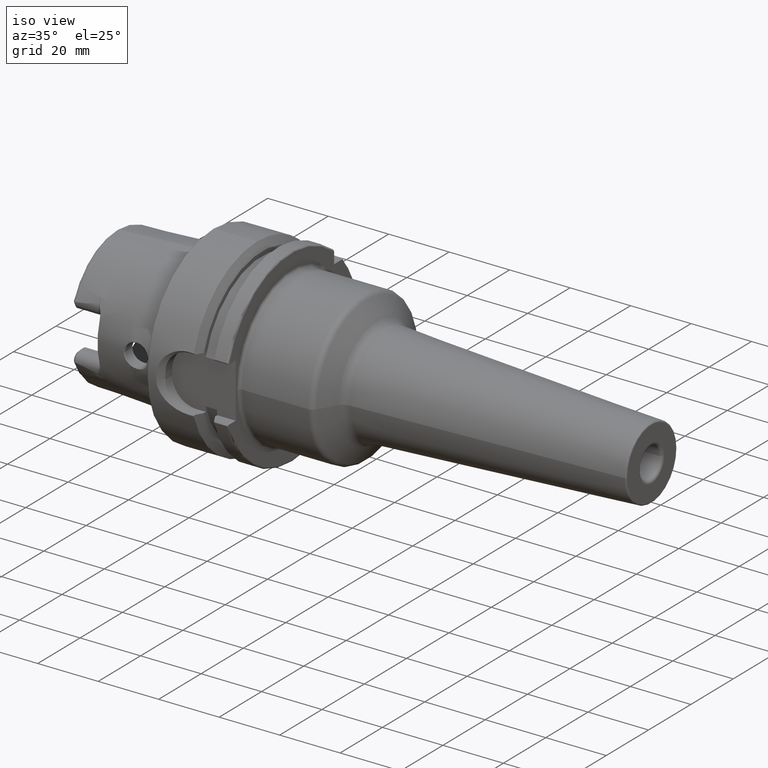
[diagram: clean part render]
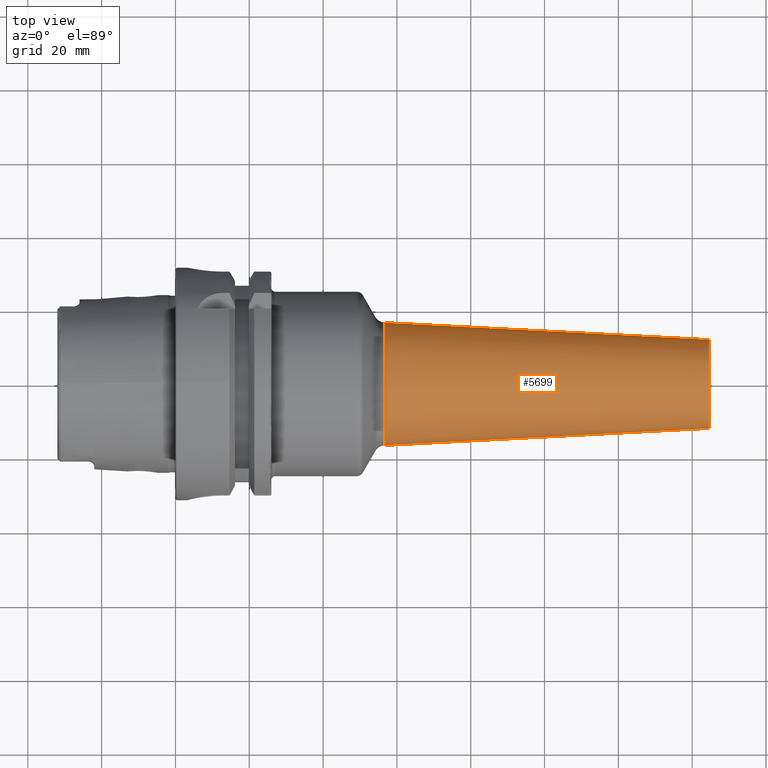
[diagram: tour spotlight — one face highlighted and labeled with its STEP entity id]
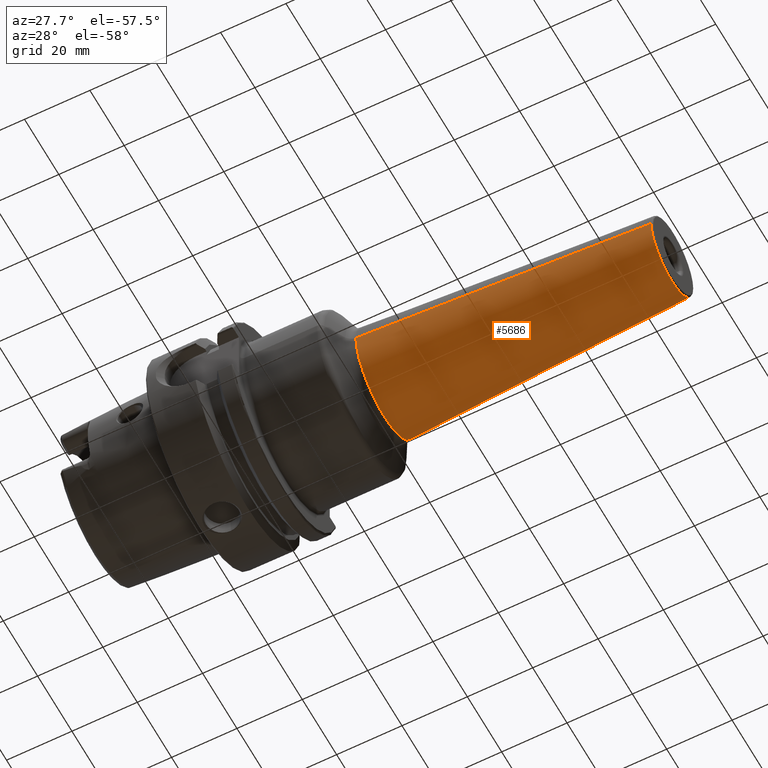
[diagram: tour spotlight — one face highlighted and labeled with its STEP entity id]
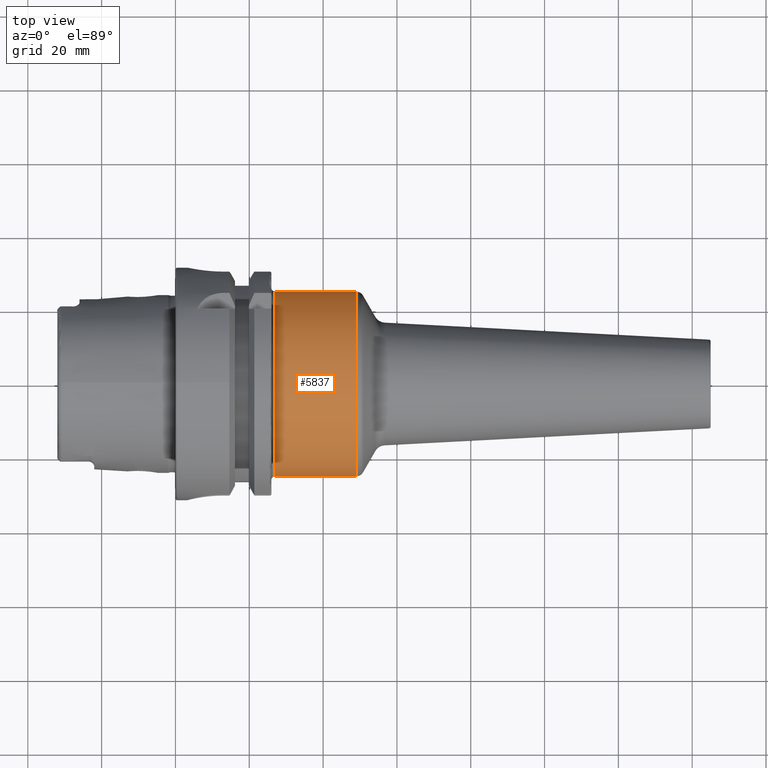
[diagram: tour spotlight — one face highlighted and labeled with its STEP entity id]
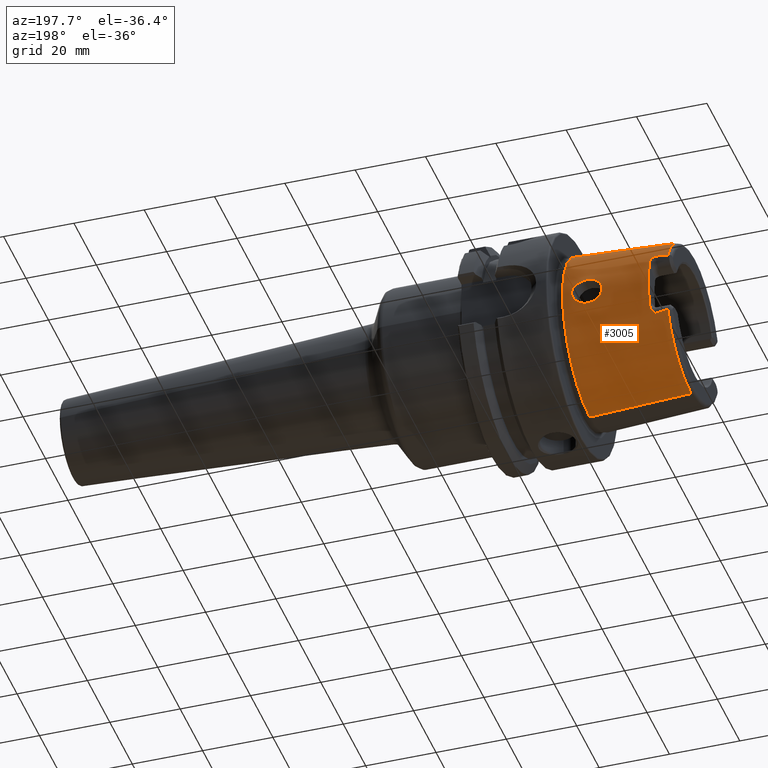
[diagram: tour spotlight — one face highlighted and labeled with its STEP entity id]
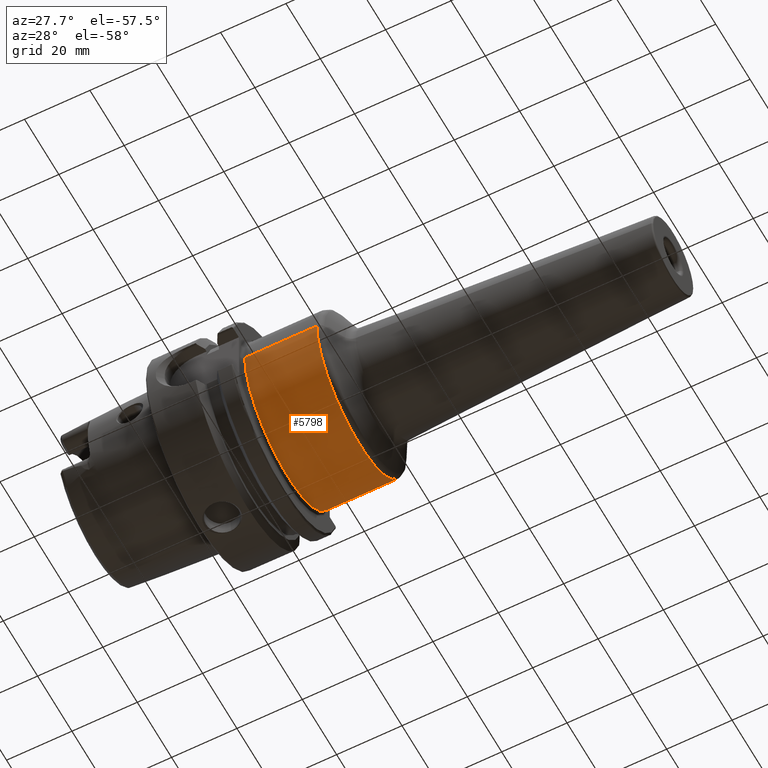
[diagram: tour spotlight — one face highlighted and labeled with its STEP entity id]
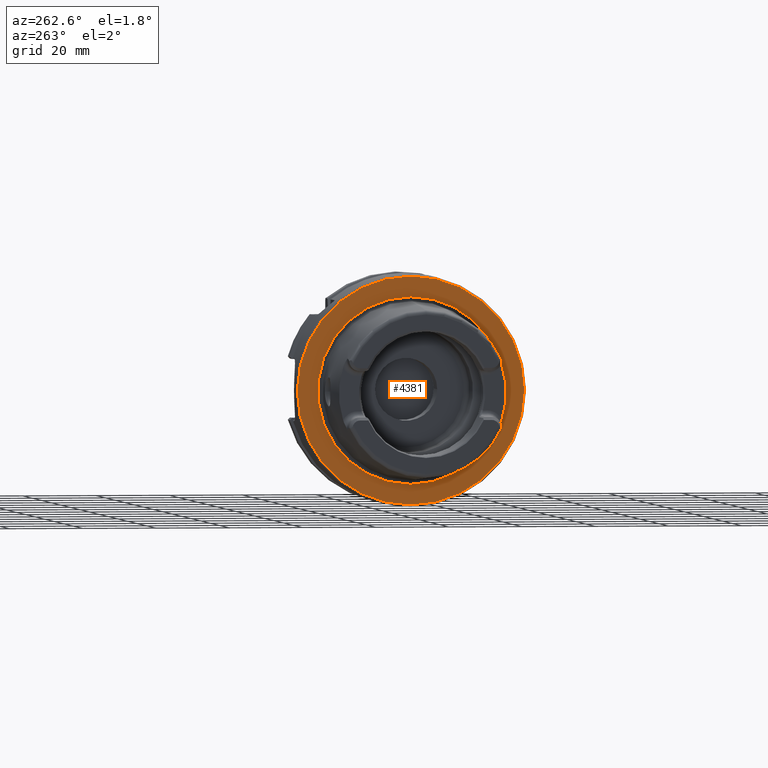
[diagram: tour spotlight — one face highlighted and labeled with its STEP entity id]
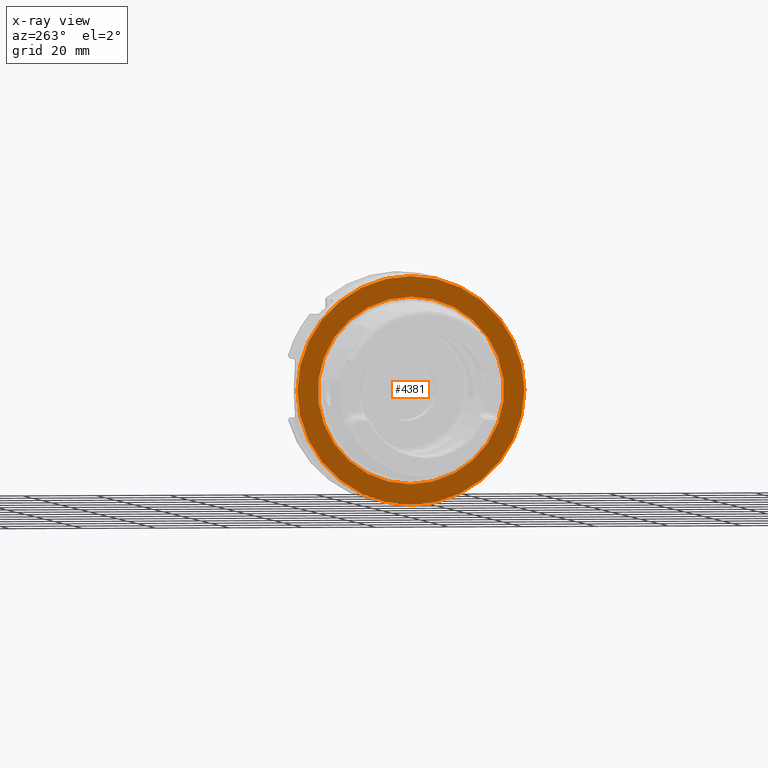
[diagram: x-ray of the same camera — body ghosted, this tour face saturated]
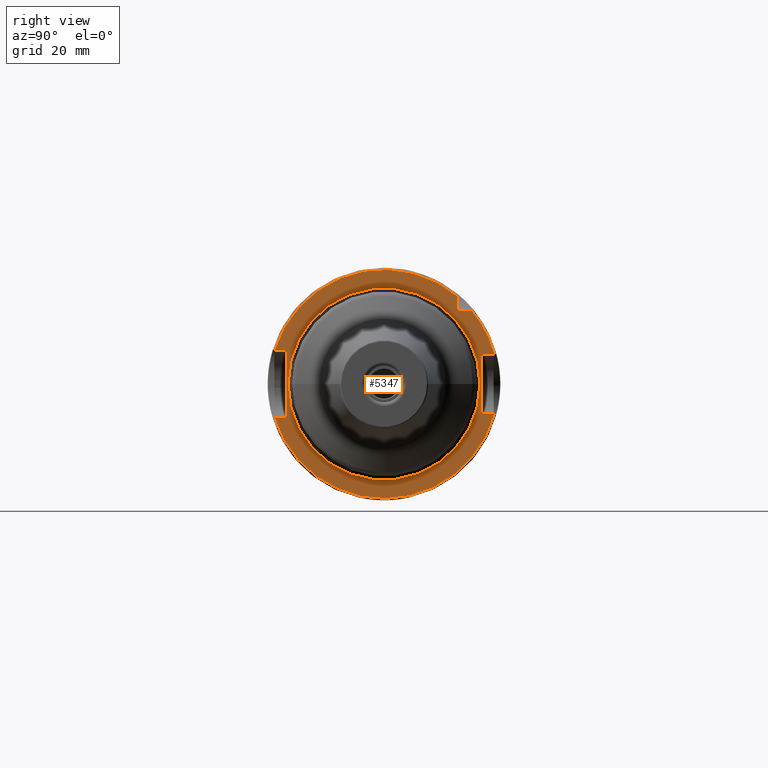
[diagram: tour spotlight — one face highlighted and labeled with its STEP entity id]
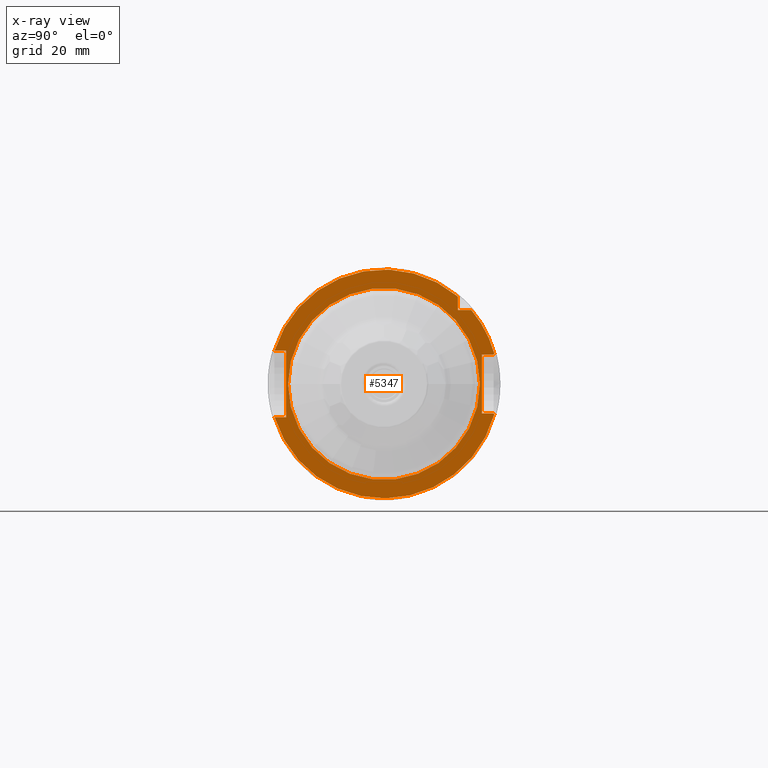
[diagram: x-ray of the same camera — body ghosted, this tour face saturated]
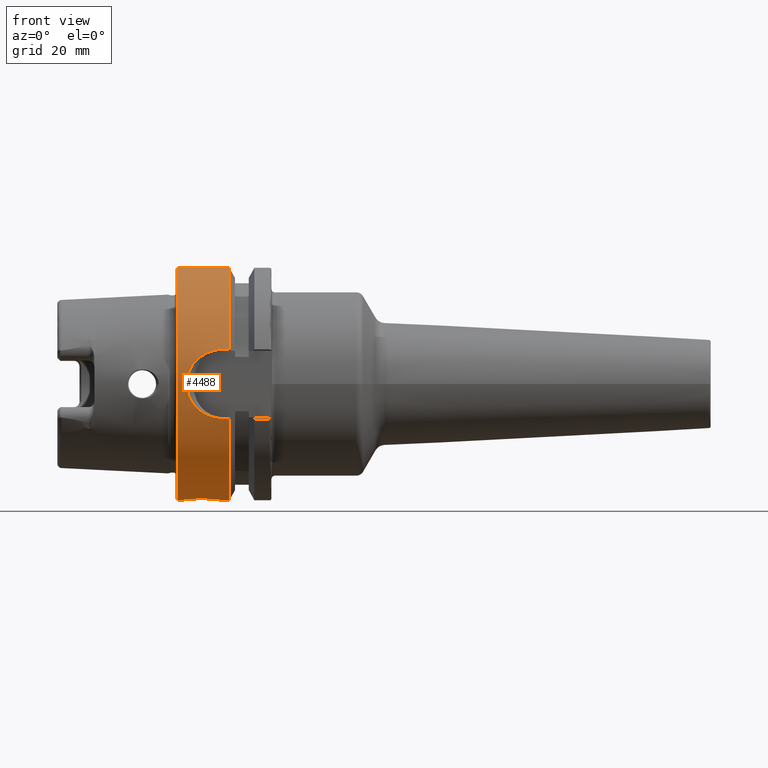
[diagram: tour spotlight — one face highlighted and labeled with its STEP entity id]
A machine part: a face-by-face anatomy tour. The part has 183 B-rep faces; the first image is the clean iso view, then the 8 largest visible faces are spotlighted one at a time (largest first), each with its STEP entity span.

Face 1 — top view, entity #5699. In plain terms, the highlighted conical surface has half-angle 3 deg.
Definition (entity closure, byte-faithful):
#2358=DIRECTION('',(-9.986295347546E-1,5.233595624293E-2,0.E0));
#2359=VECTOR('',#2358,8.802016175754E1);
#2360=CARTESIAN_POINT('',(1.445261679781E2,1.202483248402E1,0.E0));
#2361=LINE('',#2360,#2359);
#2362=DIRECTION('',(-9.986295347546E-1,-5.233595624293E-2,0.E0));
#2363=VECTOR('',#2362,8.802016175754E1);
#2364=CARTESIAN_POINT('',(1.445261679781E2,-1.202483248402E1,0.E0));
#2365=LINE('',#2364,#2363);
#2371=CARTESIAN_POINT('',(1.445261679781E2,0.E0,0.E0));
#2372=DIRECTION('',(1.E0,0.E0,0.E0));
#2373=DIRECTION('',(0.E0,1.E0,0.E0));
#2374=AXIS2_PLACEMENT_3D('',#2371,#2372,#2373);
#2376=CARTESIAN_POINT('',(5.662663479316E1,0.E0,0.E0));
#2377=DIRECTION('',(1.E0,0.E0,0.E0));
#2378=DIRECTION('',(0.E0,1.E0,0.E0));
#2379=AXIS2_PLACEMENT_3D('',#2376,#2377,#2378);
#2917=CARTESIAN_POINT('',(1.445261679781E2,1.202483248402E1,0.E0));
#2919=VERTEX_POINT('',#2917);
#2920=CARTESIAN_POINT('',(5.662663479316E1,1.663145181826E1,0.E0));
#2921=VERTEX_POINT('',#2920);
#2949=CARTESIAN_POINT('',(1.445261679781E2,-1.202483248402E1,0.E0));
#2951=VERTEX_POINT('',#2949);
#2952=CARTESIAN_POINT('',(5.662663479316E1,-1.663145181826E1,0.E0));
#2953=VERTEX_POINT('',#2952);
#5687=CARTESIAN_POINT('',(1.005764013856E2,0.E0,0.E0));
#5688=DIRECTION('',(-1.E0,0.E0,0.E0));
#5689=DIRECTION('',(0.E0,1.E0,0.E0));
#5690=AXIS2_PLACEMENT_3D('',#5687,#5688,#5689);
#5691=CONICAL_SURFACE('',#5690,1.432814215114E1,2.999999999999E0);
#5692=ORIENTED_EDGE('',*,*,#5677,.F.);
#5693=ORIENTED_EDGE('',*,*,#5654,.T.);
#5694=ORIENTED_EDGE('',*,*,#5681,.T.);
#5696=ORIENTED_EDGE('',*,*,#5695,.F.);
#5697=EDGE_LOOP('',(#5692,#5693,#5694,#5696));
#5698=FACE_OUTER_BOUND('',#5697,.F.);
#5699=ADVANCED_FACE('',(#5698),#5691,.T.);
#2375=CIRCLE('',#2374,1.202483248402E1);
#2380=CIRCLE('',#2379,1.663145181826E1);
#5654=EDGE_CURVE('',#2919,#2951,#2375,.T.);
#5677=EDGE_CURVE('',#2919,#2921,#2361,.T.);
#5681=EDGE_CURVE('',#2951,#2953,#2365,.T.);
#5695=EDGE_CURVE('',#2921,#2953,#2380,.T.);

Face 2 — auxiliary view, entity #5686. In plain terms, the highlighted conical surface has half-angle 3 deg.
Definition (entity closure, byte-faithful):
#2358=DIRECTION('',(-9.986295347546E-1,5.233595624293E-2,0.E0));
#2359=VECTOR('',#2358,8.802016175754E1);
#2360=CARTESIAN_POINT('',(1.445261679781E2,1.202483248402E1,0.E0));
#2361=LINE('',#2360,#2359);
#2362=DIRECTION('',(-9.986295347546E-1,-5.233595624293E-2,0.E0));
#2363=VECTOR('',#2362,8.802016175754E1);
#2364=CARTESIAN_POINT('',(1.445261679781E2,-1.202483248402E1,0.E0));
#2365=LINE('',#2364,#2363);
#2366=CARTESIAN_POINT('',(1.445261679781E2,0.E0,0.E0));
#2367=DIRECTION('',(-1.E0,0.E0,0.E0));
#2368=DIRECTION('',(0.E0,1.E0,0.E0));
#2369=AXIS2_PLACEMENT_3D('',#2366,#2367,#2368);
#2391=CARTESIAN_POINT('',(5.662663479316E1,0.E0,0.E0));
#2392=DIRECTION('',(-1.E0,0.E0,0.E0));
#2393=DIRECTION('',(0.E0,1.E0,0.E0));
#2394=AXIS2_PLACEMENT_3D('',#2391,#2392,#2393);
#2917=CARTESIAN_POINT('',(1.445261679781E2,1.202483248402E1,0.E0));
#2919=VERTEX_POINT('',#2917);
#2920=CARTESIAN_POINT('',(5.662663479316E1,1.663145181826E1,0.E0));
#2921=VERTEX_POINT('',#2920);
#2949=CARTESIAN_POINT('',(1.445261679781E2,-1.202483248402E1,0.E0));
#2951=VERTEX_POINT('',#2949);
#2952=CARTESIAN_POINT('',(5.662663479316E1,-1.663145181826E1,0.E0));
#2953=VERTEX_POINT('',#2952);
#5672=CARTESIAN_POINT('',(1.005764013856E2,0.E0,0.E0));
#5673=DIRECTION('',(-1.E0,0.E0,0.E0));
#5674=DIRECTION('',(0.E0,1.E0,0.E0));
#5675=AXIS2_PLACEMENT_3D('',#5672,#5673,#5674);
#5676=CONICAL_SURFACE('',#5675,1.432814215114E1,2.999999999999E0);
#5678=ORIENTED_EDGE('',*,*,#5677,.T.);
#5680=ORIENTED_EDGE('',*,*,#5679,.T.);
#5682=ORIENTED_EDGE('',*,*,#5681,.F.);
#5683=ORIENTED_EDGE('',*,*,#5665,.F.);
#5684=EDGE_LOOP('',(#5678,#5680,#5682,#5683));
#5685=FACE_OUTER_BOUND('',#5684,.F.);
#5686=ADVANCED_FACE('',(#5685),#5676,.T.);
#2370=CIRCLE('',#2369,1.202483248402E1);
#2395=CIRCLE('',#2394,1.663145181826E1);
#5665=EDGE_CURVE('',#2919,#2951,#2370,.T.);
#5677=EDGE_CURVE('',#2919,#2921,#2361,.T.);
#5679=EDGE_CURVE('',#2921,#2953,#2395,.T.);
#5681=EDGE_CURVE('',#2951,#2953,#2365,.T.);

Face 3 — top view, entity #5837. In plain terms, the highlighted cylindrical surface (partial cylindrical patch) has radius 25 mm, axis along (1, 0, 0).
Definition (entity closure, byte-faithful):
#2439=DIRECTION('',(-1.E0,0.E0,-7.152713896745E-13));
#2440=VECTOR('',#2439,2.206293405506E1);
#2441=CARTESIAN_POINT('',(4.906293405506E1,-2.5E1,0.E0));
#2442=LINE('',#2441,#2440);
#2448=DIRECTION('',(-1.E0,0.E0,7.152379558315E-13));
#2449=VECTOR('',#2448,2.206293405506E1);
#2450=CARTESIAN_POINT('',(4.906293405506E1,2.5E1,0.E0));
#2451=LINE('',#2450,#2449);
#2462=CARTESIAN_POINT('',(2.7E1,0.E0,0.E0));
#2463=DIRECTION('',(1.E0,0.E0,0.E0));
#2464=DIRECTION('',(0.E0,1.E0,0.E0));
#2465=AXIS2_PLACEMENT_3D('',#2462,#2463,#2464);
#2467=CARTESIAN_POINT('',(4.906293405506E1,0.E0,0.E0));
#2468=DIRECTION('',(1.E0,0.E0,0.E0));
#2469=DIRECTION('',(0.E0,1.E0,0.E0));
#2470=AXIS2_PLACEMENT_3D('',#2467,#2468,#2469);
#2926=CARTESIAN_POINT('',(4.906293405506E1,2.5E1,0.E0));
#2927=VERTEX_POINT('',#2926);
#2958=CARTESIAN_POINT('',(4.906293405506E1,-2.5E1,0.E0));
#2959=VERTEX_POINT('',#2958);
#2968=CARTESIAN_POINT('',(2.7E1,-2.5E1,0.E0));
#2969=CARTESIAN_POINT('',(2.7E1,2.5E1,0.E0));
#2970=VERTEX_POINT('',#2968);
#2971=VERTEX_POINT('',#2969);
#5826=CARTESIAN_POINT('',(2.005E1,0.E0,0.E0));
#5827=DIRECTION('',(1.E0,0.E0,0.E0));
#5828=DIRECTION('',(0.E0,-1.E0,0.E0));
#5829=AXIS2_PLACEMENT_3D('',#5826,#5827,#5828);
#5830=CYLINDRICAL_SURFACE('',#5829,2.5E1);
#5831=ORIENTED_EDGE('',*,*,#5820,.F.);
#5832=ORIENTED_EDGE('',*,*,#5794,.F.);
#5833=ORIENTED_EDGE('',*,*,#5766,.T.);
#5834=ORIENTED_EDGE('',*,*,#5791,.T.);
#5835=EDGE_LOOP('',(#5831,#5832,#5833,#5834));
#5836=FACE_OUTER_BOUND('',#5835,.F.);
#5837=ADVANCED_FACE('',(#5836),#5830,.T.);
#2466=CIRCLE('',#2465,2.5E1);
#2471=CIRCLE('',#2470,2.5E1);
#5766=EDGE_CURVE('',#2927,#2959,#2471,.T.);
#5791=EDGE_CURVE('',#2959,#2970,#2442,.T.);
#5794=EDGE_CURVE('',#2927,#2971,#2451,.T.);
#5820=EDGE_CURVE('',#2971,#2970,#2466,.T.);

Face 4 — auxiliary view, entity #3005. In plain terms, the highlighted conical surface has half-angle 2.868 deg.
Definition (entity closure, byte-faithful):
#2=CARTESIAN_POINT('',(-3.086004333271E1,0.E0,0.E0));
#3=DIRECTION('',(-1.E0,0.E0,0.E0));
#4=DIRECTION('',(0.E0,9.163649919573E-1,-4.003438540993E-1));
#5=AXIS2_PLACEMENT_3D('',#2,#3,#4);
#7=CARTESIAN_POINT('',(-2.000078966146E0,0.E0,0.E0));
#8=DIRECTION('',(-1.E0,0.E0,0.E0));
#9=DIRECTION('',(0.E0,0.E0,1.E0));
#10=AXIS2_PLACEMENT_3D('',#7,#8,#9);
#12=CARTESIAN_POINT('',(-3.086004333271E1,0.E0,0.E0));
#13=DIRECTION('',(-1.E0,0.E0,0.E0));
#14=DIRECTION('',(0.E0,0.E0,1.E0));
#15=AXIS2_PLACEMENT_3D('',#12,#13,#14);
#17=CARTESIAN_POINT('',(-3.086004333271E1,2.086981840766E1,9.117659021249E0));
#18=CARTESIAN_POINT('',(-3.053477016229E1,2.087026407252E1,9.157343468693E0));
#19=CARTESIAN_POINT('',(-2.990731725920E1,2.086951854295E1,9.237138009720E0));
#20=CARTESIAN_POINT('',(-2.903749175968E1,2.086333964170E1,9.358087934639E0));
#21=CARTESIAN_POINT('',(-2.823306039663E1,2.085177035668E1,9.481640423811E0));
#22=CARTESIAN_POINT('',(-2.773735868303E1,2.083999307163E1,9.567019157167E0));
#23=CARTESIAN_POINT('',(-2.75E1,2.083289994314E1,9.610781850025E0));
#25=CARTESIAN_POINT('',(-3.086004333271E1,2.086981840766E1,-9.117659021249E0));
#26=CARTESIAN_POINT('',(-3.053477016229E1,2.087026407252E1,-9.157343468693E0));
#27=CARTESIAN_POINT('',(-2.990731725920E1,2.086951854295E1,-9.237138009720E0));
#28=CARTESIAN_POINT('',(-2.903749175968E1,2.086333964170E1,-9.358087934639E0));
#29=CARTESIAN_POINT('',(-2.823306039663E1,2.085177035668E1,-9.481640423811E0));
#30=CARTESIAN_POINT('',(-2.773735868303E1,2.083999307163E1,-9.567019157167E0));
#31=CARTESIAN_POINT('',(-2.75E1,2.083289994314E1,-9.610781850025E0));
#33=CARTESIAN_POINT('',(-1.304439190524E1,2.366711362744E1,0.E0));
#34=CARTESIAN_POINT('',(-1.304439190524E1,2.366711362744E1,-2.692296203512E-1));
#35=CARTESIAN_POINT('',(-1.298596588633E1,2.366095548437E1,-7.915478808268E-1));
#36=CARTESIAN_POINT('',(-1.273593529021E1,2.363615494345E1,-1.538491121410E0));
#37=CARTESIAN_POINT('',(-1.234085581199E1,2.360161826823E1,-2.213541098239E0));
#38=CARTESIAN_POINT('',(-1.181419542757E1,2.356442533815E1,-2.805250832800E0));
#39=CARTESIAN_POINT('',(-1.117137997799E1,2.353291472613E1,-3.293080560877E0));
#40=CARTESIAN_POINT('',(-1.044411763446E1,2.351584278645E1,-3.653416998785E0));
#41=CARTESIAN_POINT('',(-9.665961713705E0,2.351947741575E1,-3.874611692795E0));
#42=CARTESIAN_POINT('',(-8.868249773196E0,2.354653765362E1,-3.954597009881E0));
#43=CARTESIAN_POINT('',(-8.066538054402E0,2.359739017255E1,-3.894486132971E0));
#44=CARTESIAN_POINT('',(-7.282895667530E0,2.366966238930E1,-3.694792672991E0));
#45=CARTESIAN_POINT('',(-6.526798753436E0,2.376050761714E1,-3.345491144455E0));
#46=CARTESIAN_POINT('',(-5.863814319433E0,2.385701628222E1,-2.868853306938E0));
#47=CARTESIAN_POINT('',(-5.312865344565E0,2.394874241525E1,-2.282242940895E0));
#48=CARTESIAN_POINT('',(-4.894562356430E0,2.402528280422E1,-1.608353345469E0));
#49=CARTESIAN_POINT('',(-4.618382192889E0,2.407904412959E1,-8.401112834544E-1));
#50=CARTESIAN_POINT('',(-4.550876813471E0,2.409262908457E1,-2.877835390342E-1));
#51=CARTESIAN_POINT('',(-4.550876813471E0,2.409262908457E1,0.E0));
#53=CARTESIAN_POINT('',(-4.550876813471E0,2.409262908457E1,0.E0));
#54=CARTESIAN_POINT('',(-4.550876813471E0,2.409262908457E1,2.859611557422E-1));
#55=CARTESIAN_POINT('',(-4.617596309412E0,2.407920413971E1,8.352613928778E-1));
#56=CARTESIAN_POINT('',(-4.890694973026E0,2.402602347294E1,1.599880277375E0));
#57=CARTESIAN_POINT('',(-5.306466792903E0,2.394987071124E1,2.273906799261E0));
#58=CARTESIAN_POINT('',(-5.856510230644E0,2.385815053501E1,2.862665496108E0));
#59=CARTESIAN_POINT('',(-6.521241332787E0,2.376122989035E1,3.342466827978E0));
#60=CARTESIAN_POINT('',(-7.278646414857E0,2.367010677752E1,3.693348295885E0));
#61=CARTESIAN_POINT('',(-8.062694821519E0,2.359768581097E1,3.893886174943E0));
#62=CARTESIAN_POINT('',(-8.864889034770E0,2.354669857096E1,3.954654604967E0));
#63=CARTESIAN_POINT('',(-9.662752662742E0,2.351953711749E1,3.875232791745E0));
#64=CARTESIAN_POINT('',(-1.044126794827E1,2.351581579089E1,3.654504198045E0));
#65=CARTESIAN_POINT('',(-1.116829063931E1,2.353280579750E1,3.294940241881E0));
#66=CARTESIAN_POINT('',(-1.181105545196E1,2.356423840462E1,2.808070161338E0));
#67=CARTESIAN_POINT('',(-1.233792159236E1,2.360138355943E1,2.217544614980E0));
#68=CARTESIAN_POINT('',(-1.273424784845E1,2.363599247778E1,1.542402709130E0));
#69=CARTESIAN_POINT('',(-1.298554429292E1,2.366091077517E1,7.941137450600E-1));
#70=CARTESIAN_POINT('',(-1.304439190524E1,2.366711362744E1,2.702086010916E-1));
#71=CARTESIAN_POINT('',(-1.304439190524E1,2.366711362744E1,0.E0));
#144=CARTESIAN_POINT('',(-2.75E1,2.083289994314E1,-9.610781850025E0));
#145=CARTESIAN_POINT('',(-2.743975062531E1,2.083109947580E1,-9.621890248698E0));
#146=CARTESIAN_POINT('',(-2.731974848713E1,2.083872619074E1,-9.619737940193E0));
#147=CARTESIAN_POINT('',(-2.713788283439E1,2.088499706769E1,-9.541042090458E0));
#148=CARTESIAN_POINT('',(-2.696734572208E1,2.095414112914E1,-9.409321527965E0));
#149=CARTESIAN_POINT('',(-2.680749153758E1,2.103583876480E1,-9.245355378728E0));
#150=CARTESIAN_POINT('',(-2.665257735252E1,2.112843537783E1,-9.051716021862E0));
#151=CARTESIAN_POINT('',(-2.650302698832E1,2.123047210424E1,-8.829512386182E0));
#152=CARTESIAN_POINT('',(-2.636248241751E1,2.133984318010E1,-8.581008391494E0));
#153=CARTESIAN_POINT('',(-2.623108108915E1,2.145913591165E1,-8.296954135832E0));
#154=CARTESIAN_POINT('',(-2.611489180659E1,2.158976731555E1,-7.968405102356E0));
#155=CARTESIAN_POINT('',(-2.602652288189E1,2.173158022596E1,-7.587530024420E0));
#156=CARTESIAN_POINT('',(-2.6E1,2.183164499938E1,-7.296342131266E0));
#157=CARTESIAN_POINT('',(-2.6E1,2.188224159781E1,-7.141305064401E0));
#173=CARTESIAN_POINT('',(-2.6E1,0.E0,0.E0));
#174=DIRECTION('',(1.E0,0.E0,0.E0));
#175=DIRECTION('',(0.E0,9.506556522061E-1,-3.102480151887E-1));
#176=AXIS2_PLACEMENT_3D('',#173,#174,#175);
#713=DIRECTION('',(-9.987474310439E-1,-1.043943059125E-10,-5.003567710383E-2));
#714=VECTOR('',#713,2.889623723507E1);
#715=CARTESIAN_POINT('',(-2.000000627352E0,3.013169918385E-9,2.422041252602E1));
#716=LINE('',#715,#714);
#722=DIRECTION('',(-9.987474310439E-1,1.043954859780E-10,5.003567710383E-2));
#723=VECTOR('',#722,2.889623723507E1);
#724=CARTESIAN_POINT('',(-2.000000627352E0,-3.013171862045E-9,
-2.422041252602E1));
#725=LINE('',#724,#723);
#881=CARTESIAN_POINT('',(-2.6E1,2.188224159781E1,7.141305064400E0));
#882=CARTESIAN_POINT('',(-2.6E1,2.183974716074E1,7.271515653360E0));
#883=CARTESIAN_POINT('',(-2.601871282871E1,2.175468164903E1,7.521324142367E0));
#884=CARTESIAN_POINT('',(-2.608831272694E1,2.162788937119E1,7.867819964950E0));
#885=CARTESIAN_POINT('',(-2.618560132166E1,2.150728532315E1,8.177555427085E0));
#886=CARTESIAN_POINT('',(-2.630091098865E1,2.139363544444E1,8.454351951900E0));
#887=CARTESIAN_POINT('',(-2.642777532615E1,2.128749113051E1,8.701079139516E0));
#888=CARTESIAN_POINT('',(-2.656205230822E1,2.118893349758E1,8.920855574258E0));
#889=CARTESIAN_POINT('',(-2.670233126283E1,2.109762227452E1,9.116811046229E0));
#890=CARTESIAN_POINT('',(-2.684756686438E1,2.101419232942E1,9.289367907590E0));
#891=CARTESIAN_POINT('',(-2.700261207520E1,2.093857757737E1,9.439508455813E0));
#892=CARTESIAN_POINT('',(-2.716024259459E1,2.087834082786E1,9.552833408787E0));
#893=CARTESIAN_POINT('',(-2.733041362146E1,2.083774391445E1,9.620584457154E0));
#894=CARTESIAN_POINT('',(-2.744319606554E1,2.083120243791E1,9.621255000217E0));
#895=CARTESIAN_POINT('',(-2.75E1,2.083289994314E1,9.610781850025E0));
#2547=CARTESIAN_POINT('',(-2.000078966146E0,0.E0,-2.422042115892E1));
#2548=CARTESIAN_POINT('',(-2.000078966146E0,0.E0,2.422042115892E1));
#2549=VERTEX_POINT('',#2547);
#2550=VERTEX_POINT('',#2548);
#2692=CARTESIAN_POINT('',(-2.6E1,2.188224159781E1,-7.141305064400E0));
#2694=VERTEX_POINT('',#2692);
#2696=CARTESIAN_POINT('',(-2.75E1,2.083289994314E1,-9.610781850025E0));
#2698=VERTEX_POINT('',#2696);
#2700=CARTESIAN_POINT('',(-2.75E1,2.083289994314E1,9.610781850025E0));
#2702=VERTEX_POINT('',#2700);
#2704=CARTESIAN_POINT('',(-2.6E1,2.188224159781E1,7.141305064400E0));
#2706=VERTEX_POINT('',#2704);
#2722=CARTESIAN_POINT('',(-3.086004333271E1,0.E0,-2.277456973022E1));
#2724=VERTEX_POINT('',#2722);
#2726=CARTESIAN_POINT('',(-3.086004333271E1,2.086981840766E1,
-9.117659021249E0));
#2727=VERTEX_POINT('',#2726);
#2728=CARTESIAN_POINT('',(-3.086004333271E1,0.E0,2.277456973022E1));
#2729=CARTESIAN_POINT('',(-3.086004333271E1,2.086981840766E1,9.117659021249E0));
#2730=VERTEX_POINT('',#2728);
#2731=VERTEX_POINT('',#2729);
#2810=VERTEX_POINT('',#33);
#2811=VERTEX_POINT('',#51);
#2972=CARTESIAN_POINT('',(-1.643002229390E1,0.E0,0.E0));
#2973=DIRECTION('',(1.E0,0.E0,0.E0));
#2974=DIRECTION('',(0.E0,0.E0,1.E0));
#2975=AXIS2_PLACEMENT_3D('',#2972,#2973,#2974);
#2976=CONICAL_SURFACE('',#2975,2.349749739118E1,2.86805556E0);
#2978=ORIENTED_EDGE('',*,*,#2977,.T.);
#2980=ORIENTED_EDGE('',*,*,#2979,.F.);
#2982=ORIENTED_EDGE('',*,*,#2981,.F.);
#2984=ORIENTED_EDGE('',*,*,#2983,.T.);
#2986=ORIENTED_EDGE('',*,*,#2985,.T.);
#2988=ORIENTED_EDGE('',*,*,#2987,.T.);
#2990=ORIENTED_EDGE('',*,*,#2989,.F.);
#2992=ORIENTED_EDGE('',*,*,#2991,.F.);
#2994=ORIENTED_EDGE('',*,*,#2993,.F.);
#2996=ORIENTED_EDGE('',*,*,#2995,.F.);
#2997=EDGE_LOOP('',(#2978,#2980,#2982,#2984,#2986,#2988,#2990,#2992,#2994,
#2996));
#2998=FACE_OUTER_BOUND('',#2997,.F.);
#3000=ORIENTED_EDGE('',*,*,#2999,.F.);
#3002=ORIENTED_EDGE('',*,*,#3001,.F.);
#3003=EDGE_LOOP('',(#3000,#3002));
#3004=FACE_BOUND('',#3003,.F.);
#3005=ADVANCED_FACE('',(#2998,#3004),#2976,.T.);
#6=CIRCLE('',#5,2.277456973022E1);
#11=CIRCLE('',#10,2.422042115892E1);
#16=CIRCLE('',#15,2.277456973022E1);
#24=B_SPLINE_CURVE_WITH_KNOTS('',3,(#17,#18,#19,#20,#21,#22,#23),.UNSPECIFIED.,
.F.,.F.,(4,1,1,1,4),(0.E0,2.5E-1,5.E-1,7.5E-1,1.E0),.UNSPECIFIED.);
#32=B_SPLINE_CURVE_WITH_KNOTS('',3,(#25,#26,#27,#28,#29,#30,#31),.UNSPECIFIED.,
.F.,.F.,(4,1,1,1,4),(0.E0,2.5E-1,5.E-1,7.5E-1,1.E0),.UNSPECIFIED.);
#52=B_SPLINE_CURVE_WITH_KNOTS('',3,(#33,#34,#35,#36,#37,#38,#39,#40,#41,#42,#43,
#44,#45,#46,#47,#48,#49,#50,#51),.UNSPECIFIED.,.F.,.F.,(4,1,1,1,1,1,1,1,1,1,1,1,
1,1,1,1,4),(0.E0,6.25E-2,1.25E-1,1.875E-1,2.5E-1,3.125E-1,3.75E-1,4.375E-1,
5.E-1,5.625E-1,6.25E-1,6.875E-1,7.5E-1,8.125E-1,8.75E-1,9.375E-1,1.E0),
.UNSPECIFIED.);
#72=B_SPLINE_CURVE_WITH_KNOTS('',3,(#53,#54,#55,#56,#57,#58,#59,#60,#61,#62,#63,
#64,#65,#66,#67,#68,#69,#70,#71),.UNSPECIFIED.,.F.,.F.,(4,1,1,1,1,1,1,1,1,1,1,1,
1,1,1,1,4),(0.E0,6.25E-2,1.25E-1,1.875E-1,2.5E-1,3.125E-1,3.75E-1,4.375E-1,
5.E-1,5.625E-1,6.25E-1,6.875E-1,7.5E-1,8.125E-1,8.75E-1,9.375E-1,1.E0),
.UNSPECIFIED.);
#158=B_SPLINE_CURVE_WITH_KNOTS('',3,(#144,#145,#146,#147,#148,#149,#150,#151,
#152,#153,#154,#155,#156,#157),.UNSPECIFIED.,.F.,.F.,(4,1,1,1,1,1,1,1,1,1,1,4),(
0.E0,9.090909090909E-2,1.818181818182E-1,2.727272727273E-1,3.636363636364E-1,
4.545454545455E-1,5.454545454545E-1,6.363636363636E-1,7.272727272727E-1,
8.181818181818E-1,9.090909090909E-1,1.E0),.UNSPECIFIED.);
#177=CIRCLE('',#176,2.301805237998E1);
#896=B_SPLINE_CURVE_WITH_KNOTS('',3,(#881,#882,#883,#884,#885,#886,#887,#888,
#889,#890,#891,#892,#893,#894,#895),.UNSPECIFIED.,.F.,.F.,(4,1,1,1,1,1,1,1,1,1,
1,1,4),(0.E0,8.333333333333E-2,1.666666666667E-1,2.5E-1,3.333333333333E-1,
4.166666666667E-1,5.E-1,5.833333333333E-1,6.666666666667E-1,7.5E-1,
8.333333333333E-1,9.166666666667E-1,1.E0),.UNSPECIFIED.);
#2977=EDGE_CURVE('',#2727,#2724,#6,.T.);
#2979=EDGE_CURVE('',#2549,#2724,#725,.T.);
#2981=EDGE_CURVE('',#2550,#2549,#11,.T.);
#2983=EDGE_CURVE('',#2550,#2730,#716,.T.);
#2985=EDGE_CURVE('',#2730,#2731,#16,.T.);
#2987=EDGE_CURVE('',#2731,#2702,#24,.T.);
#2989=EDGE_CURVE('',#2706,#2702,#896,.T.);
#2991=EDGE_CURVE('',#2694,#2706,#177,.T.);
#2993=EDGE_CURVE('',#2698,#2694,#158,.T.);
#2995=EDGE_CURVE('',#2727,#2698,#32,.T.);
#2999=EDGE_CURVE('',#2810,#2811,#52,.T.);
#3001=EDGE_CURVE('',#2811,#2810,#72,.T.);

Face 5 — auxiliary view, entity #5798. In plain terms, the highlighted cylindrical surface (partial cylindrical patch) has radius 25 mm, axis along (1, 0, 0).
Definition (entity closure, byte-faithful):
#2434=CARTESIAN_POINT('',(2.7E1,0.E0,0.E0));
#2435=DIRECTION('',(1.E0,0.E0,0.E0));
#2436=DIRECTION('',(0.E0,-1.E0,0.E0));
#2437=AXIS2_PLACEMENT_3D('',#2434,#2435,#2436);
#2439=DIRECTION('',(-1.E0,0.E0,-7.152713896745E-13));
#2440=VECTOR('',#2439,2.206293405506E1);
#2441=CARTESIAN_POINT('',(4.906293405506E1,-2.5E1,0.E0));
#2442=LINE('',#2441,#2440);
#2443=CARTESIAN_POINT('',(4.906293405506E1,0.E0,0.E0));
#2444=DIRECTION('',(-1.E0,0.E0,0.E0));
#2445=DIRECTION('',(0.E0,1.E0,0.E0));
#2446=AXIS2_PLACEMENT_3D('',#2443,#2444,#2445);
#2448=DIRECTION('',(-1.E0,0.E0,7.152379558315E-13));
#2449=VECTOR('',#2448,2.206293405506E1);
#2450=CARTESIAN_POINT('',(4.906293405506E1,2.5E1,0.E0));
#2451=LINE('',#2450,#2449);
#2926=CARTESIAN_POINT('',(4.906293405506E1,2.5E1,0.E0));
#2927=VERTEX_POINT('',#2926);
#2958=CARTESIAN_POINT('',(4.906293405506E1,-2.5E1,0.E0));
#2959=VERTEX_POINT('',#2958);
#2968=CARTESIAN_POINT('',(2.7E1,-2.5E1,0.E0));
#2969=CARTESIAN_POINT('',(2.7E1,2.5E1,0.E0));
#2970=VERTEX_POINT('',#2968);
#2971=VERTEX_POINT('',#2969);
#5784=CARTESIAN_POINT('',(2.005E1,0.E0,0.E0));
#5785=DIRECTION('',(1.E0,0.E0,0.E0));
#5786=DIRECTION('',(0.E0,-1.E0,0.E0));
#5787=AXIS2_PLACEMENT_3D('',#5784,#5785,#5786);
#5788=CYLINDRICAL_SURFACE('',#5787,2.5E1);
#5790=ORIENTED_EDGE('',*,*,#5789,.F.);
#5792=ORIENTED_EDGE('',*,*,#5791,.F.);
#5793=ORIENTED_EDGE('',*,*,#5777,.F.);
#5795=ORIENTED_EDGE('',*,*,#5794,.T.);
#5796=EDGE_LOOP('',(#5790,#5792,#5793,#5795));
#5797=FACE_OUTER_BOUND('',#5796,.F.);
#5798=ADVANCED_FACE('',(#5797),#5788,.T.);
#2438=CIRCLE('',#2437,2.5E1);
#2447=CIRCLE('',#2446,2.5E1);
#5777=EDGE_CURVE('',#2927,#2959,#2447,.T.);
#5789=EDGE_CURVE('',#2970,#2971,#2438,.T.);
#5791=EDGE_CURVE('',#2959,#2970,#2442,.T.);
#5794=EDGE_CURVE('',#2927,#2971,#2451,.T.);

Face 6 — auxiliary view, entity #4381. An x-ray twin of the same camera follows (body ghosted, this face saturated) — the face is partly hidden behind the body. In plain terms, the highlighted planar face has unit normal (1, 0, 0).
Definition (entity closure, byte-faithful):
#1257=CARTESIAN_POINT('',(0.E0,0.E0,0.E0));
#1258=DIRECTION('',(1.E0,0.E0,0.E0));
#1259=DIRECTION('',(0.E0,0.E0,-1.E0));
#1260=AXIS2_PLACEMENT_3D('',#1257,#1258,#1259);
#1262=CARTESIAN_POINT('',(0.E0,0.E0,0.E0));
#1263=DIRECTION('',(1.E0,0.E0,0.E0));
#1264=DIRECTION('',(0.E0,0.E0,1.E0));
#1265=AXIS2_PLACEMENT_3D('',#1262,#1263,#1264);
#1267=CARTESIAN_POINT('',(0.E0,0.E0,0.E0));
#1268=DIRECTION('',(-1.E0,0.E0,0.E0));
#1269=DIRECTION('',(0.E0,0.E0,1.E0));
#1270=AXIS2_PLACEMENT_3D('',#1267,#1268,#1269);
#1272=CARTESIAN_POINT('',(0.E0,0.E0,0.E0));
#1273=DIRECTION('',(-1.E0,0.E0,0.E0));
#1274=DIRECTION('',(0.E0,0.E0,-1.E0));
#1275=AXIS2_PLACEMENT_3D('',#1272,#1273,#1274);
#2539=CARTESIAN_POINT('',(0.E0,0.E0,-2.54204E1));
#2540=CARTESIAN_POINT('',(0.E0,0.E0,2.54204E1));
#2541=VERTEX_POINT('',#2539);
#2542=VERTEX_POINT('',#2540);
#2868=CARTESIAN_POINT('',(0.E0,0.E0,3.1E1));
#2869=CARTESIAN_POINT('',(0.E0,1.138921523207E-14,-3.1E1));
#2870=VERTEX_POINT('',#2868);
#2871=VERTEX_POINT('',#2869);
#4366=CARTESIAN_POINT('',(0.E0,0.E0,0.E0));
#4367=DIRECTION('',(1.E0,0.E0,0.E0));
#4368=DIRECTION('',(0.E0,0.E0,1.E0));
#4369=AXIS2_PLACEMENT_3D('',#4366,#4367,#4368);
#4370=PLANE('',#4369);
#4372=ORIENTED_EDGE('',*,*,#4371,.F.);
#4374=ORIENTED_EDGE('',*,*,#4373,.F.);
#4375=EDGE_LOOP('',(#4372,#4374));
#4376=FACE_OUTER_BOUND('',#4375,.F.);
#4377=ORIENTED_EDGE('',*,*,#4322,.F.);
#4378=ORIENTED_EDGE('',*,*,#4307,.F.);
#4379=EDGE_LOOP('',(#4377,#4378));
#4380=FACE_BOUND('',#4379,.F.);
#4381=ADVANCED_FACE('',(#4376,#4380),#4370,.F.);
#1261=CIRCLE('',#1260,2.54204E1);
#1266=CIRCLE('',#1265,2.54204E1);
#1271=CIRCLE('',#1270,3.1E1);
#1276=CIRCLE('',#1275,3.1E1);
#4307=EDGE_CURVE('',#2542,#2541,#1266,.T.);
#4322=EDGE_CURVE('',#2541,#2542,#1261,.T.);
#4371=EDGE_CURVE('',#2870,#2871,#1271,.T.);
#4373=EDGE_CURVE('',#2871,#2870,#1276,.T.);

Face 7 — right view, entity #5347. An x-ray twin of the same camera follows (body ghosted, this face saturated) — the face is partly hidden behind the body. In plain terms, the highlighted planar face has unit normal (1, 0, 0).
Definition (entity closure, byte-faithful):
#1408=CARTESIAN_POINT('',(2.6E1,0.E0,0.E0));
#1409=DIRECTION('',(1.E0,0.E0,0.E0));
#1410=DIRECTION('',(0.E0,-9.569288370446E-1,-2.903225806452E-1));
#1411=AXIS2_PLACEMENT_3D('',#1408,#1409,#1410);
#1673=CARTESIAN_POINT('',(2.6E1,2.989671887754E1,-8.196718877539E0));
#1777=CARTESIAN_POINT('',(2.6E1,-2.966479394838E1,9.E0));
#1792=CARTESIAN_POINT('',(2.6E1,0.E0,0.E0));
#1793=DIRECTION('',(1.E0,0.E0,0.E0));
#1794=DIRECTION('',(0.E0,6.451612903226E-1,7.640464053114E-1));
#1795=AXIS2_PLACEMENT_3D('',#1792,#1793,#1794);
#1813=CARTESIAN_POINT('',(2.6E1,2.E1,2.368543856465E1));
#1823=CARTESIAN_POINT('',(2.6E1,2.368543856465E1,2.E1));
#1837=CARTESIAN_POINT('',(2.6E1,0.E0,0.E0));
#1838=DIRECTION('',(1.E0,0.E0,0.E0));
#1839=DIRECTION('',(0.E0,9.644102863722E-1,2.644102863722E-1));
#1840=AXIS2_PLACEMENT_3D('',#1837,#1838,#1839);
#1849=CARTESIAN_POINT('',(2.6E1,2.989671887754E1,8.196718877539E0));
#1969=CARTESIAN_POINT('',(2.6E1,-2.966479394838E1,-9.E0));
#2102=DIRECTION('',(0.E0,1.E0,0.E0));
#2103=VECTOR('',#2102,3.164793948383E0);
#2104=CARTESIAN_POINT('',(2.6E1,-2.966479394838E1,-9.E0));
#2105=LINE('',#2104,#2103);
#2106=DIRECTION('',(0.E0,0.E0,1.E0));
#2107=VECTOR('',#2106,1.8E1);
#2108=CARTESIAN_POINT('',(2.6E1,-2.65E1,-9.E0));
#2109=LINE('',#2108,#2107);
#2110=DIRECTION('',(0.E0,1.E0,0.E0));
#2111=VECTOR('',#2110,3.164793948383E0);
#2112=CARTESIAN_POINT('',(2.6E1,-2.966479394838E1,9.E0));
#2113=LINE('',#2112,#2111);
#2114=DIRECTION('',(0.E0,0.E0,-1.E0));
#2115=VECTOR('',#2114,3.685438564654E0);
#2116=CARTESIAN_POINT('',(2.6E1,2.E1,2.368543856465E1));
#2117=LINE('',#2116,#2115);
#2118=DIRECTION('',(0.E0,-1.E0,0.E0));
#2119=VECTOR('',#2118,3.685438564654E0);
#2120=CARTESIAN_POINT('',(2.6E1,2.368543856465E1,2.E1));
#2121=LINE('',#2120,#2119);
#2122=DIRECTION('',(0.E0,-7.071067811866E-1,-7.071067811865E-1));
#2123=VECTOR('',#2122,2.782025045905E-1);
#2124=CARTESIAN_POINT('',(2.6E1,2.989671887754E1,8.196718877539E0));
#2125=LINE('',#2124,#2123);
#2126=DIRECTION('',(0.E0,-1.E0,0.E0));
#2127=VECTOR('',#2126,3.2E0);
#2128=CARTESIAN_POINT('',(2.6E1,2.97E1,8.E0));
#2129=LINE('',#2128,#2127);
#2130=DIRECTION('',(0.E0,0.E0,1.E0));
#2131=VECTOR('',#2130,1.6E1);
#2132=CARTESIAN_POINT('',(2.6E1,2.65E1,-8.E0));
#2133=LINE('',#2132,#2131);
#2134=DIRECTION('',(0.E0,-1.E0,0.E0));
#2135=VECTOR('',#2134,3.2E0);
#2136=CARTESIAN_POINT('',(2.6E1,2.97E1,-8.E0));
#2137=LINE('',#2136,#2135);
#2138=DIRECTION('',(0.E0,-7.071067811865E-1,7.071067811866E-1));
#2139=VECTOR('',#2138,2.782025045903E-1);
#2140=CARTESIAN_POINT('',(2.6E1,2.989671887754E1,-8.196718877539E0));
#2141=LINE('',#2140,#2139);
#2152=CARTESIAN_POINT('',(2.6E1,0.E0,0.E0));
#2153=DIRECTION('',(1.E0,0.E0,0.E0));
#2154=DIRECTION('',(0.E0,-1.E0,0.E0));
#2155=AXIS2_PLACEMENT_3D('',#2152,#2153,#2154);
#2157=CARTESIAN_POINT('',(2.6E1,0.E0,0.E0));
#2158=DIRECTION('',(1.E0,0.E0,0.E0));
#2159=DIRECTION('',(0.E0,1.E0,0.E0));
#2160=AXIS2_PLACEMENT_3D('',#2157,#2158,#2159);
#2559=CARTESIAN_POINT('',(2.6E1,2.65E1,-8.E0));
#2560=CARTESIAN_POINT('',(2.6E1,2.65E1,8.E0));
#2561=VERTEX_POINT('',#2559);
#2562=VERTEX_POINT('',#2560);
#2591=CARTESIAN_POINT('',(2.6E1,-2.65E1,-9.E0));
#2592=CARTESIAN_POINT('',(2.6E1,-2.65E1,9.E0));
#2593=VERTEX_POINT('',#2591);
#2594=VERTEX_POINT('',#2592);
#2649=CARTESIAN_POINT('',(2.6E1,2.E1,2.E1));
#2650=VERTEX_POINT('',#2649);
#2862=CARTESIAN_POINT('',(2.6E1,2.97E1,-8.E0));
#2863=VERTEX_POINT('',#2862);
#2864=CARTESIAN_POINT('',(2.6E1,2.97E1,8.E0));
#2865=VERTEX_POINT('',#2864);
#2878=VERTEX_POINT('',#1969);
#2879=VERTEX_POINT('',#1673);
#2882=VERTEX_POINT('',#1849);
#2883=VERTEX_POINT('',#1823);
#2886=VERTEX_POINT('',#1813);
#2887=VERTEX_POINT('',#1777);
#2964=CARTESIAN_POINT('',(2.6E1,-2.6E1,0.E0));
#2965=CARTESIAN_POINT('',(2.6E1,2.6E1,0.E0));
#2966=VERTEX_POINT('',#2964);
#2967=VERTEX_POINT('',#2965);
#5321=CARTESIAN_POINT('',(2.6E1,0.E0,0.E0));
#5322=DIRECTION('',(1.E0,0.E0,0.E0));
#5323=DIRECTION('',(0.E0,0.E0,1.E0));
#5324=AXIS2_PLACEMENT_3D('',#5321,#5322,#5323);
#5325=PLANE('',#5324);
#5326=ORIENTED_EDGE('',*,*,#4499,.F.);
#5327=ORIENTED_EDGE('',*,*,#5223,.T.);
#5328=ORIENTED_EDGE('',*,*,#4884,.T.);
#5329=ORIENTED_EDGE('',*,*,#4936,.F.);
#5330=ORIENTED_EDGE('',*,*,#4955,.F.);
#5331=ORIENTED_EDGE('',*,*,#4990,.T.);
#5332=ORIENTED_EDGE('',*,*,#5027,.F.);
#5333=ORIENTED_EDGE('',*,*,#5046,.F.);
#5334=ORIENTED_EDGE('',*,*,#5077,.T.);
#5335=ORIENTED_EDGE('',*,*,#5303,.T.);
#5336=ORIENTED_EDGE('',*,*,#5122,.F.);
#5337=ORIENTED_EDGE('',*,*,#4815,.F.);
#5338=ORIENTED_EDGE('',*,*,#4783,.F.);
#5339=EDGE_LOOP('',(#5326,#5327,#5328,#5329,#5330,#5331,#5332,#5333,#5334,#5335,
#5336,#5337,#5338));
#5340=FACE_OUTER_BOUND('',#5339,.F.);
#5342=ORIENTED_EDGE('',*,*,#5341,.T.);
#5344=ORIENTED_EDGE('',*,*,#5343,.T.);
#5345=EDGE_LOOP('',(#5342,#5344));
#5346=FACE_BOUND('',#5345,.F.);
#5347=ADVANCED_FACE('',(#5340,#5346),#5325,.T.);
#1412=CIRCLE('',#1411,3.1E1);
#1796=CIRCLE('',#1795,3.1E1);
#1841=CIRCLE('',#1840,3.1E1);
#2156=CIRCLE('',#2155,2.6E1);
#2161=CIRCLE('',#2160,2.6E1);
#4499=EDGE_CURVE('',#2878,#2879,#1412,.T.);
#4783=EDGE_CURVE('',#2879,#2863,#2141,.T.);
#4815=EDGE_CURVE('',#2863,#2561,#2137,.T.);
#4884=EDGE_CURVE('',#2593,#2594,#2109,.T.);
#4936=EDGE_CURVE('',#2887,#2594,#2113,.T.);
#4955=EDGE_CURVE('',#2886,#2887,#1796,.T.);
#4990=EDGE_CURVE('',#2886,#2650,#2117,.T.);
#5027=EDGE_CURVE('',#2883,#2650,#2121,.T.);
#5046=EDGE_CURVE('',#2882,#2883,#1841,.T.);
#5077=EDGE_CURVE('',#2882,#2865,#2125,.T.);
#5122=EDGE_CURVE('',#2561,#2562,#2133,.T.);
#5223=EDGE_CURVE('',#2878,#2593,#2105,.T.);
#5303=EDGE_CURVE('',#2865,#2562,#2129,.T.);
#5341=EDGE_CURVE('',#2966,#2967,#2156,.T.);
#5343=EDGE_CURVE('',#2967,#2966,#2161,.T.);

Face 8 — front view, entity #4488. In plain terms, the highlighted cylindrical surface (partial cylindrical patch) has radius 31.5 mm, axis along (1, 0, 0).
Definition (entity closure, byte-faithful):
#1311=CARTESIAN_POINT('',(5.E-1,0.E0,0.E0));
#1312=DIRECTION('',(-1.E0,0.E0,0.E0));
#1313=DIRECTION('',(0.E0,0.E0,-1.E0));
#1314=AXIS2_PLACEMENT_3D('',#1311,#1312,#1313);
#1316=DIRECTION('',(-1.E0,-1.152697855394E-12,0.E0));
#1317=VECTOR('',#1316,1.412250090457E1);
#1318=CARTESIAN_POINT('',(1.462250090457E1,0.E0,3.15E1));
#1319=LINE('',#1318,#1317);
#1320=CARTESIAN_POINT('',(1.462250090457E1,0.E0,0.E0));
#1321=DIRECTION('',(1.E0,0.E0,0.E0));
#1322=DIRECTION('',(0.E0,0.E0,1.E0));
#1323=AXIS2_PLACEMENT_3D('',#1320,#1321,#1322);
#1325=DIRECTION('',(1.E0,0.E0,0.E0));
#1326=VECTOR('',#1325,1.622500904567E0);
#1327=CARTESIAN_POINT('',(1.3E1,-3.007314630073E1,9.373146300730E0));
#1328=LINE('',#1327,#1326);
#1329=CARTESIAN_POINT('',(3.215877017138E0,-3.148412298286E1,1.E0));
#1330=CARTESIAN_POINT('',(3.229667999164E0,-3.147033200084E1,1.434196974159E0));
#1331=CARTESIAN_POINT('',(3.331305148110E0,-3.142562614716E1,2.280557906877E0));
#1332=CARTESIAN_POINT('',(3.689639209254E0,-3.131261894329E1,3.497824814117E0));
#1333=CARTESIAN_POINT('',(4.224387561762E0,-3.116591969202E1,4.617731549332E0));
#1334=CARTESIAN_POINT('',(4.908842568303E0,-3.099748287679E1,5.632070943113E0));
#1335=CARTESIAN_POINT('',(5.712482050064E0,-3.082045350516E1,6.526140660742E0));
#1336=CARTESIAN_POINT('',(6.610248790574E0,-3.064607991101E1,7.296749719208E0));
#1337=CARTESIAN_POINT('',(7.571522800308E0,-3.048524436851E1,7.938452155490E0));
#1338=CARTESIAN_POINT('',(8.586678709411E0,-3.034375148093E1,8.460694722024E0));
#1339=CARTESIAN_POINT('',(9.645764018389E0,-3.022707288446E1,8.866638984176E0));
#1340=CARTESIAN_POINT('',(1.074128466146E1,-3.013966717822E1,9.158034230836E0));
#1341=CARTESIAN_POINT('',(1.186302386205E1,-3.008546433696E1,9.333758812896E0));
#1342=CARTESIAN_POINT('',(1.261911814478E1,-3.007314630073E1,9.373146300730E0));
#1343=CARTESIAN_POINT('',(1.3E1,-3.007314630073E1,9.373146300730E0));
#1345=CARTESIAN_POINT('',(3.215877017138E0,-3.148412298286E1,1.E0));
#1346=CARTESIAN_POINT('',(3.194702323244E0,-3.150529767676E1,
3.333333333333E-1));
#1347=CARTESIAN_POINT('',(3.194702323244E0,-3.150529767676E1,
-3.333333333333E-1));
#1348=CARTESIAN_POINT('',(3.215877017138E0,-3.148412298286E1,-1.E0));
#1350=CARTESIAN_POINT('',(1.3E1,-3.007314630073E1,-9.373146300730E0));
#1351=CARTESIAN_POINT('',(1.261853332120E1,-3.007314630073E1,
-9.373146300730E0));
#1352=CARTESIAN_POINT('',(1.186054965003E1,-3.008548964654E1,
-9.333679878844E0));
#1353=CARTESIAN_POINT('',(1.073214946153E1,-3.014018055062E1,
-9.156365746563E0));
#1354=CARTESIAN_POINT('',(9.631145388051E0,-3.022842683235E1,
-8.862067281056E0));
#1355=CARTESIAN_POINT('',(8.571278418516E0,-3.034570143073E1,
-8.453719776647E0));
#1356=CARTESIAN_POINT('',(7.561968874510E0,-3.048678333923E1,
-7.932465852427E0));
#1357=CARTESIAN_POINT('',(6.609353099417E0,-3.064632014939E1,
-7.295523702098E0));
#1358=CARTESIAN_POINT('',(5.719379577085E0,-3.081907849533E1,
-6.532291860359E0));
#1359=CARTESIAN_POINT('',(4.918592559215E0,-3.099521802093E1,
-5.644324145033E0));
#1360=CARTESIAN_POINT('',(4.231158808814E0,-3.116413549913E1,
-4.629983120332E0));
#1361=CARTESIAN_POINT('',(3.691949597490E0,-3.131190693228E1,
-3.504990575318E0));
#1362=CARTESIAN_POINT('',(3.331145804748E0,-3.142565099898E1,
-2.281032014602E0));
#1363=CARTESIAN_POINT('',(3.229661047521E0,-3.147033895248E1,
-1.433978107804E0));
#1364=CARTESIAN_POINT('',(3.215877017138E0,-3.148412298286E1,-1.E0));
#1366=DIRECTION('',(1.E0,0.E0,0.E0));
#1367=VECTOR('',#1366,1.622500904567E0);
#1368=CARTESIAN_POINT('',(1.3E1,-3.007314630073E1,-9.373146300730E0));
#1369=LINE('',#1368,#1367);
#1370=CARTESIAN_POINT('',(1.462250090457E1,0.E0,0.E0));
#1371=DIRECTION('',(1.E0,0.E0,0.E0));
#1372=DIRECTION('',(0.E0,-9.547030571660E-1,-2.975602000232E-1));
#1373=AXIS2_PLACEMENT_3D('',#1370,#1371,#1372);
#1375=DIRECTION('',(-1.E0,0.E0,0.E0));
#1376=VECTOR('',#1375,2.122500904567E0);
#1377=CARTESIAN_POINT('',(1.462250090457E1,0.E0,-3.15E1));
#1378=LINE('',#1377,#1376);
#1379=CARTESIAN_POINT('',(1.5E0,0.E0,-3.15E1));
#1380=CARTESIAN_POINT('',(1.5E0,-3.588951255127E-1,-3.15E1));
#1381=CARTESIAN_POINT('',(1.581138327990E0,-1.048548521747E0,
-3.148782376809E1));
#1382=CARTESIAN_POINT('',(1.910588073966E0,-2.006564336888E0,
-3.144040908891E1));
#1383=CARTESIAN_POINT('',(2.415944971875E0,-2.861556117510E0,
-3.137324069068E1));
#1384=CARTESIAN_POINT('',(3.093296979582E0,-3.621570072850E0,
-3.129379480836E1));
#1385=CARTESIAN_POINT('',(3.932860337858E0,-4.259632130927E0,
-3.121237817627E1));
#1386=CARTESIAN_POINT('',(4.908163968859E0,-4.738763837594E0,
-3.114229734464E1));
#1387=CARTESIAN_POINT('',(5.940629906439E0,-5.023428099724E0,
-3.109702626598E1));
#1388=CARTESIAN_POINT('',(7.003177692584E0,-5.118459986461E0,
-3.108133735981E1));
#1389=CARTESIAN_POINT('',(8.065102610065E0,-5.022310651440E0,
-3.109720856453E1));
#1390=CARTESIAN_POINT('',(9.095890701222E0,-4.737167472201E0,
-3.114254165967E1));
#1391=CARTESIAN_POINT('',(1.007119715688E1,-4.257247395534E0,
-3.121271241342E1));
#1392=CARTESIAN_POINT('',(1.091189752168E1,-3.616987749219E0,
-3.129434443001E1));
#1393=CARTESIAN_POINT('',(1.158923361556E1,-2.854578399489E0,
-3.137389265772E1));
#1394=CARTESIAN_POINT('',(1.209279314293E1,-1.998956427454E0,
-3.144088492167E1));
#1395=CARTESIAN_POINT('',(1.241973333056E1,-1.043420158419E0,
-3.148795551285E1));
#1396=CARTESIAN_POINT('',(1.25E1,-3.569041729368E-1,-3.15E1));
#1397=CARTESIAN_POINT('',(1.25E1,0.E0,-3.15E1));
#1399=DIRECTION('',(-1.E0,-3.500326402276E-12,0.E0));
#1400=VECTOR('',#1399,1.E0);
#1401=CARTESIAN_POINT('',(1.5E0,0.E0,-3.15E1));
#1402=LINE('',#1401,#1400);
#1535=CARTESIAN_POINT('',(1.25E1,0.E0,-3.15E1));
#1553=CARTESIAN_POINT('',(1.5E0,0.E0,-3.15E1));
#2647=CARTESIAN_POINT('',(1.462250090457E1,0.E0,3.15E1));
#2648=VERTEX_POINT('',#2647);
#2790=VERTEX_POINT('',#1535);
#2791=VERTEX_POINT('',#1553);
#2800=CARTESIAN_POINT('',(1.462250090457E1,0.E0,-3.15E1));
#2801=VERTEX_POINT('',#2800);
#2824=CARTESIAN_POINT('',(1.3E1,-3.007314630073E1,-9.373146300730E0));
#2825=CARTESIAN_POINT('',(1.462250090457E1,-3.007314630073E1,
-9.373146300730E0));
#2826=VERTEX_POINT('',#2824);
#2827=VERTEX_POINT('',#2825);
#2828=VERTEX_POINT('',#1364);
#2829=VERTEX_POINT('',#1345);
#2830=VERTEX_POINT('',#1343);
#2831=CARTESIAN_POINT('',(1.462250090457E1,-3.007314630073E1,9.373146300730E0));
#2832=VERTEX_POINT('',#2831);
#2872=CARTESIAN_POINT('',(5.E-1,0.E0,3.15E1));
#2873=CARTESIAN_POINT('',(5.E-1,0.E0,-3.15E1));
#2874=VERTEX_POINT('',#2872);
#2875=VERTEX_POINT('',#2873);
#4458=CARTESIAN_POINT('',(0.E0,0.E0,0.E0));
#4459=DIRECTION('',(1.E0,0.E0,0.E0));
#4460=DIRECTION('',(0.E0,0.E0,1.E0));
#4461=AXIS2_PLACEMENT_3D('',#4458,#4459,#4460);
#4462=CYLINDRICAL_SURFACE('',#4461,3.15E1);
#4463=ORIENTED_EDGE('',*,*,#4404,.T.);
#4465=ORIENTED_EDGE('',*,*,#4464,.F.);
#4467=ORIENTED_EDGE('',*,*,#4466,.T.);
#4469=ORIENTED_EDGE('',*,*,#4468,.F.);
#4471=ORIENTED_EDGE('',*,*,#4470,.F.);
#4473=ORIENTED_EDGE('',*,*,#4472,.T.);
#4475=ORIENTED_EDGE('',*,*,#4474,.F.);
#4477=ORIENTED_EDGE('',*,*,#4476,.T.);
#4479=ORIENTED_EDGE('',*,*,#4478,.T.);
#4481=ORIENTED_EDGE('',*,*,#4480,.T.);
#4483=ORIENTED_EDGE('',*,*,#4482,.F.);
#4485=ORIENTED_EDGE('',*,*,#4484,.T.);
#4486=EDGE_LOOP('',(#4463,#4465,#4467,#4469,#4471,#4473,#4475,#4477,#4479,#4481,
#4483,#4485));
#4487=FACE_OUTER_BOUND('',#4486,.F.);
#4488=ADVANCED_FACE('',(#4487),#4462,.T.);
#1315=CIRCLE('',#1314,3.15E1);
#1324=CIRCLE('',#1323,3.15E1);
#1344=B_SPLINE_CURVE_WITH_KNOTS('',3,(#1329,#1330,#1331,#1332,#1333,#1334,#1335,
#1336,#1337,#1338,#1339,#1340,#1341,#1342,#1343),.UNSPECIFIED.,.F.,.F.,(4,1,1,1,
1,1,1,1,1,1,1,1,4),(0.E0,8.333333333333E-2,1.666666666667E-1,2.5E-1,
3.333333333333E-1,4.166666666667E-1,5.E-1,5.833333333333E-1,6.666666666667E-1,
7.5E-1,8.333333333333E-1,9.166666666667E-1,1.E0),.UNSPECIFIED.);
#1349=B_SPLINE_CURVE_WITH_KNOTS('',3,(#1345,#1346,#1347,#1348),.UNSPECIFIED.,
.F.,.F.,(4,4),(0.E0,1.E0),.UNSPECIFIED.);
#1365=B_SPLINE_CURVE_WITH_KNOTS('',3,(#1350,#1351,#1352,#1353,#1354,#1355,#1356,
#1357,#1358,#1359,#1360,#1361,#1362,#1363,#1364),.UNSPECIFIED.,.F.,.F.,(4,1,1,1,
1,1,1,1,1,1,1,1,4),(0.E0,8.333333333333E-2,1.666666666667E-1,2.5E-1,
3.333333333333E-1,4.166666666667E-1,5.E-1,5.833333333333E-1,6.666666666667E-1,
7.5E-1,8.333333333333E-1,9.166666666667E-1,1.E0),.UNSPECIFIED.);
#1374=CIRCLE('',#1373,3.15E1);
#1398=B_SPLINE_CURVE_WITH_KNOTS('',3,(#1379,#1380,#1381,#1382,#1383,#1384,#1385,
#1386,#1387,#1388,#1389,#1390,#1391,#1392,#1393,#1394,#1395,#1396,#1397),
.UNSPECIFIED.,.F.,.F.,(4,1,1,1,1,1,1,1,1,1,1,1,1,1,1,1,4),(0.E0,6.25E-2,1.25E-1,
1.875E-1,2.5E-1,3.125E-1,3.75E-1,4.375E-1,5.E-1,5.625E-1,6.25E-1,6.875E-1,
7.5E-1,8.125E-1,8.75E-1,9.375E-1,1.E0),.UNSPECIFIED.);
#4404=EDGE_CURVE('',#2875,#2874,#1315,.T.);
#4464=EDGE_CURVE('',#2648,#2874,#1319,.T.);
#4466=EDGE_CURVE('',#2648,#2832,#1324,.T.);
#4468=EDGE_CURVE('',#2830,#2832,#1328,.T.);
#4470=EDGE_CURVE('',#2829,#2830,#1344,.T.);
#4472=EDGE_CURVE('',#2829,#2828,#1349,.T.);
#4474=EDGE_CURVE('',#2826,#2828,#1365,.T.);
#4476=EDGE_CURVE('',#2826,#2827,#1369,.T.);
#4478=EDGE_CURVE('',#2827,#2801,#1374,.T.);
#4480=EDGE_CURVE('',#2801,#2790,#1378,.T.);
#4482=EDGE_CURVE('',#2791,#2790,#1398,.T.);
#4484=EDGE_CURVE('',#2791,#2875,#1402,.T.);